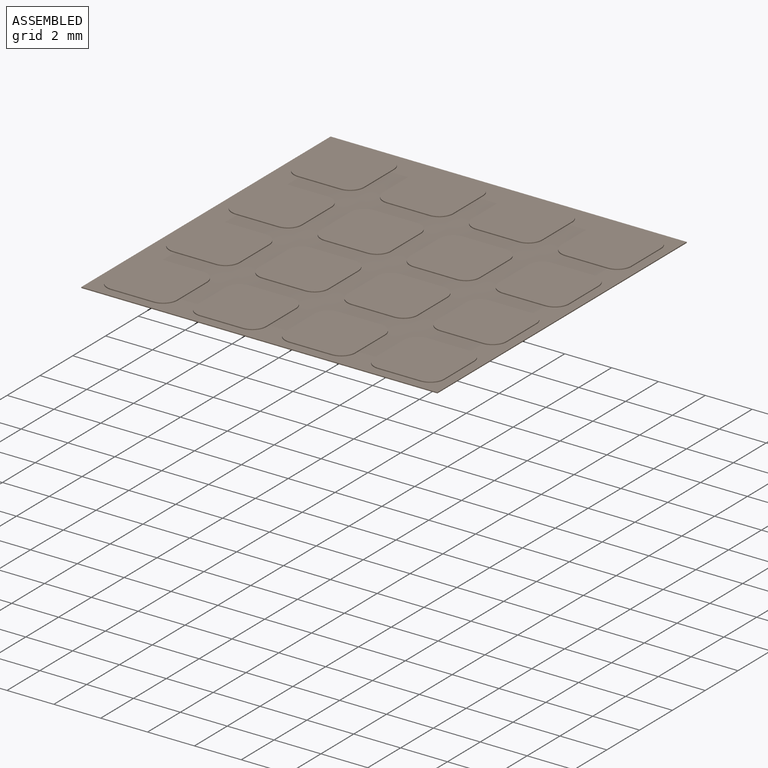
[diagram: assembled view]
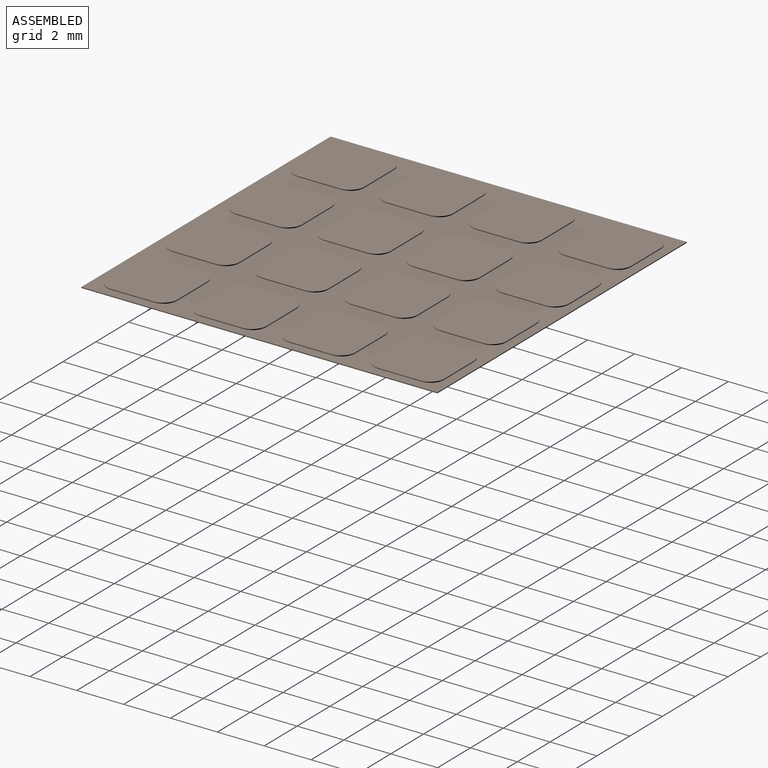
[diagram: assembled view, second angle]
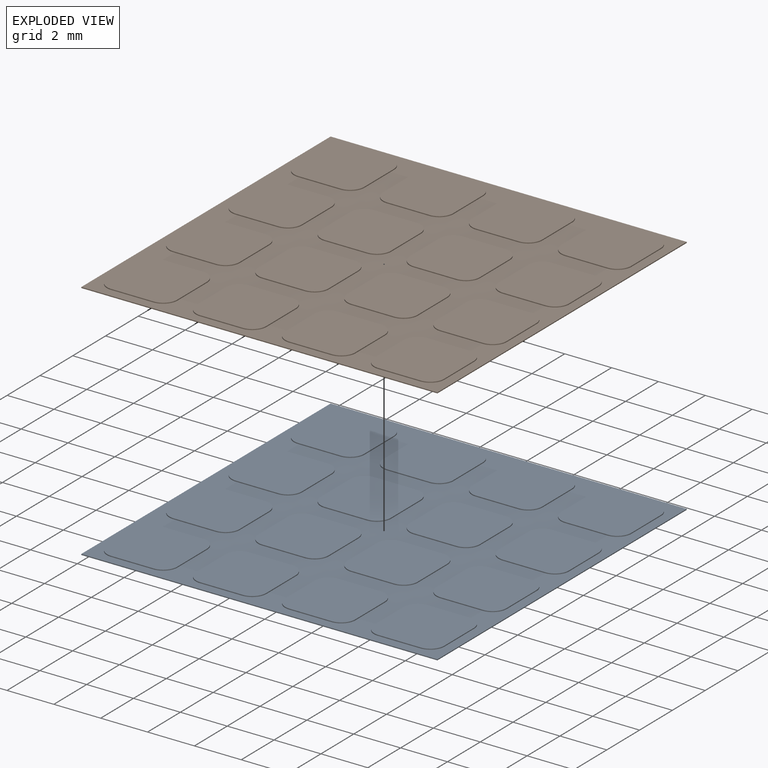
[diagram: exploded view]
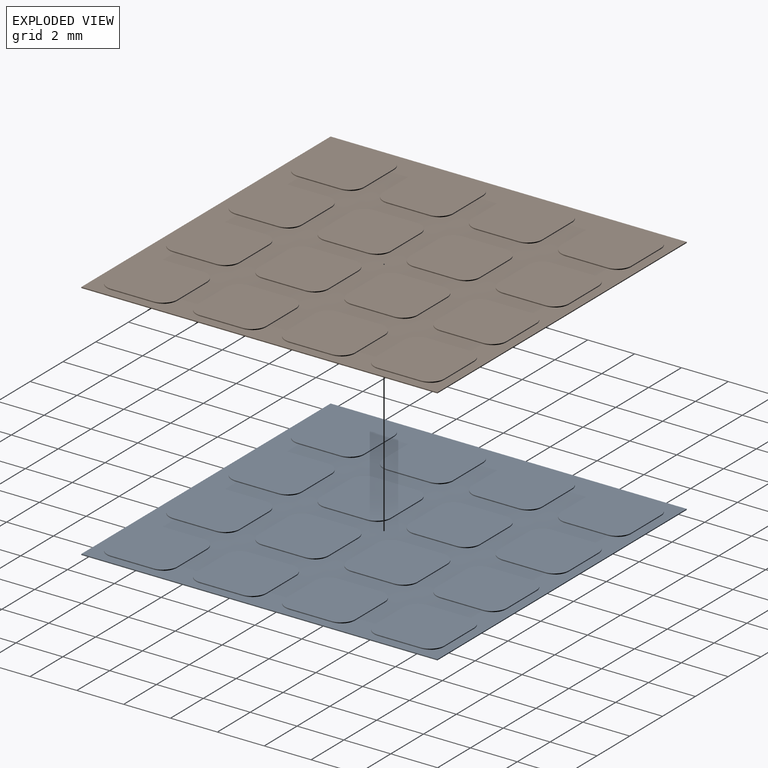
[diagram: exploded view, second angle]
FCSTD DOCUMENT  (FreeCAD 0.21R33771 (Git))
Label: pixelVolume_with_3_neighbors
License: All rights reserved
LicenseURL: https://en.wikipedia.org/wiki/All_rights_reserved
objects: Part::Cylinder×64, Part::Box×35, Part::MultiFuse×16, App::Link×2, Part::Cut×2, Spreadsheet::Sheet×1, Part::Compound×1
note: 118 computed .brp shape members not serialized (recipe doc carries the construction recipe); baked Part::Feature solids carry a one-line shape summary decoded from their .brp

FEATURE [Part::Box] Box009  label="pixel_body_horizontal"
  AttacherType = Attacher::AttachEngine3D
  Height = 0.04
  Length = 3
  Placement = pos=(-1.5,-0.9,0) rot=(0,0,1;0rad)
  Width = 1.8
  expr: .Placement.Base.x = -<<Parameters>>.pixel_width / 2
  expr: .Placement.Base.y = -<<Parameters>>.pixel_width / 2 + <<Parameters>>.pixel_corner_radius
  expr: Height = <<Parameters>>.pixel_thickness
  expr: Length = <<Parameters>>.pixel_width
  expr: Width = <<Parameters>>.pixel_width - 2 * <<Parameters>>.pixel_corner_radius
FEATURE [Part::Cylinder] Cylinder012  label="pixel_corner_bottom_right"
  Angle = 360
  AttacherType = Attacher::AttachEngine3D
  FirstAngle = 0
  Height = 0.04
  Placement = pos=(0.9,-0.9,0) rot=(0,0,1;0rad)
  Radius = 0.6
  SecondAngle = 0
  expr: .Placement.Base.x = <<Parameters>>.pixel_width / 2 - <<Parameters>>.pixel_corner_radius
  expr: .Placement.Base.y = -<<Parameters>>.pixel_width / 2 + <<Parameters>>.pixel_corner_radius
  expr: Height = <<Parameters>>.pixel_thickness
  expr: Radius = <<Parameters>>.pixel_corner_radius
FEATURE [Part::Cylinder] Cylinder013  label="pixel_corner_top_right"
  Angle = 360
  AttacherType = Attacher::AttachEngine3D
  FirstAngle = 0
  Height = 0.04
  Placement = pos=(0.9,0.9,0) rot=(0,0,1;0rad)
  Radius = 0.6
  SecondAngle = 0
  expr: .Placement.Base.x = <<Parameters>>.pixel_width / 2 - <<Parameters>>.pixel_corner_radius
  expr: .Placement.Base.y = <<Parameters>>.pixel_width / 2 - <<Parameters>>.pixel_corner_radius
  expr: Height = <<Parameters>>.pixel_thickness
  expr: Radius = <<Parameters>>.pixel_corner_radius
FEATURE [Part::Cylinder] Cylinder014  label="pixel_corner_bottom_left"
  Angle = 360
  AttacherType = Attacher::AttachEngine3D
  FirstAngle = 0
  Height = 0.04
  Placement = pos=(-0.9,-0.9,0) rot=(0,0,1;0rad)
  Radius = 0.6
  SecondAngle = 0
  expr: .Placement.Base.x = -<<Parameters>>.pixel_width / 2 + <<Parameters>>.pixel_corner_radius
  expr: .Placement.Base.y = -<<Parameters>>.pixel_width / 2 + <<Parameters>>.pixel_corner_radius
  expr: Height = <<Parameters>>.pixel_thickness
  expr: Radius = <<Parameters>>.pixel_corner_radius
FEATURE [Part::Box] Box002  label="back plane"
  AttacherType = Attacher::AttachEngine3D
  Height = 0.04
  Length = 15.2
  Placement = pos=(-1.9,-1.9,-0.04) rot=(0,0,1;0rad)
  Width = 15.2
  expr: .Placement.Base.x = -<<Parameters>>.pixel_pitch / 2
  expr: .Placement.Base.y = -<<Parameters>>.pixel_pitch / 2
  expr: .Placement.Base.z = -<<Parameters>>.pixel_thickness
  expr: Height = <<Parameters>>.pixel_thickness
  expr: Length = 4 * <<Parameters>>.pixel_pitch
  expr: Width = 4 * <<Parameters>>.pixel_pitch
FEATURE [Spreadsheet::Sheet] Spreadsheet  label="Parameters"
  cells = A1='Variable Name; B1='Value; A2='pixel_corner_radius; B2(pixel_corner_radius)==0.6 mm; A3='pixel_width; B3(pixel_width)==3 mm; A4='pixel_pitch; B4(pixel_pitch)==3.8 mm; A5='pixel_thickness; B5(pixel_thickness)==0.04 mm; A6='lar_depth; B6(lar_depth)==12 mm
FEATURE [Part::Cylinder] Cylinder016  label="pixel_corner_top_left"
  Angle = 360
  AttacherType = Attacher::AttachEngine3D
  FirstAngle = 0
  Height = 0.04
  Placement = pos=(-0.9,0.9,0) rot=(0,0,1;0rad)
  Radius = 0.6
  SecondAngle = 0
  expr: .Placement.Base.x = -<<Parameters>>.pixel_width / 2 + <<Parameters>>.pixel_corner_radius
  expr: .Placement.Base.y = <<Parameters>>.pixel_width / 2 - <<Parameters>>.pixel_corner_radius
  expr: Height = <<Parameters>>.pixel_thickness
  expr: Radius = <<Parameters>>.pixel_corner_radius
FEATURE [Part::Box] Box011  label="pixel_body_vertical"
  AttacherType = Attacher::AttachEngine3D
  Height = 0.04
  Length = 1.8
  Placement = pos=(-0.9,-1.5,0) rot=(0,0,1;0rad)
  Width = 3
  expr: .Placement.Base.x = -<<Parameters>>.pixel_width / 2 + <<Parameters>>.pixel_corner_radius
  expr: .Placement.Base.y = -<<Parameters>>.pixel_width / 2
  expr: Height = <<Parameters>>.pixel_thickness
  expr: Length = <<Parameters>>.pixel_width - 2 * <<Parameters>>.pixel_corner_radius
  expr: Width = <<Parameters>>.pixel_width
FEATURE [Part::MultiFuse] Fusion003  label="pixel pad 0, 0 (center)"
  Shapes = -> [Box009,Cylinder012,Cylinder013,Cylinder014,Cylinder016,Box011]
FEATURE [Part::Box] Box012  label="pixel_body_horizontal001"
  AttacherType = Attacher::AttachEngine3D
  Height = 0.04
  Length = 3
  Placement = pos=(-1.5,-0.9,0) rot=(0,0,1;0rad)
  Width = 1.8
  expr: .Placement.Base.x = -<<Parameters>>.pixel_width / 2
  expr: .Placement.Base.y = -<<Parameters>>.pixel_width / 2 + <<Parameters>>.pixel_corner_radius
  expr: Height = <<Parameters>>.pixel_thickness
  expr: Length = <<Parameters>>.pixel_width
  expr: Width = <<Parameters>>.pixel_width - 2 * <<Parameters>>.pixel_corner_radius
FEATURE [Part::Box] Box013  label="pixel_body_vertical001"
  AttacherType = Attacher::AttachEngine3D
  Height = 0.04
  Length = 1.8
  Placement = pos=(-0.9,-1.5,0) rot=(0,0,1;0rad)
  Width = 3
  expr: .Placement.Base.x = -<<Parameters>>.pixel_width / 2 + <<Parameters>>.pixel_corner_radius
  expr: .Placement.Base.y = -<<Parameters>>.pixel_width / 2
  expr: Height = <<Parameters>>.pixel_thickness
  expr: Length = <<Parameters>>.pixel_width - 2 * <<Parameters>>.pixel_corner_radius
  expr: Width = <<Parameters>>.pixel_width
FEATURE [Part::Cylinder] Cylinder017  label="pixel_corner_bottom_right001"
  Angle = 360
  AttacherType = Attacher::AttachEngine3D
  FirstAngle = 0
  Height = 0.04
  Placement = pos=(0.9,-0.9,0) rot=(0,0,1;0rad)
  Radius = 0.6
  SecondAngle = 0
  expr: .Placement.Base.x = <<Parameters>>.pixel_width / 2 - <<Parameters>>.pixel_corner_radius
  expr: .Placement.Base.y = -<<Parameters>>.pixel_width / 2 + <<Parameters>>.pixel_corner_radius
  expr: Height = <<Parameters>>.pixel_thickness
  expr: Radius = <<Parameters>>.pixel_corner_radius
FEATURE [Part::Cylinder] Cylinder018  label="pixel_corner_top_right001"
  Angle = 360
  AttacherType = Attacher::AttachEngine3D
  FirstAngle = 0
  Height = 0.04
  Placement = pos=(0.9,0.9,0) rot=(0,0,1;0rad)
  Radius = 0.6
  SecondAngle = 0
  expr: .Placement.Base.x = <<Parameters>>.pixel_width / 2 - <<Parameters>>.pixel_corner_radius
  expr: .Placement.Base.y = <<Parameters>>.pixel_width / 2 - <<Parameters>>.pixel_corner_radius
  expr: Height = <<Parameters>>.pixel_thickness
  expr: Radius = <<Parameters>>.pixel_corner_radius
FEATURE [Part::Cylinder] Cylinder019  label="pixel_corner_bottom_left001"
  Angle = 360
  AttacherType = Attacher::AttachEngine3D
  FirstAngle = 0
  Height = 0.04
  Placement = pos=(-0.9,-0.9,0) rot=(0,0,1;0rad)
  Radius = 0.6
  SecondAngle = 0
  expr: .Placement.Base.x = -<<Parameters>>.pixel_width / 2 + <<Parameters>>.pixel_corner_radius
  expr: .Placement.Base.y = -<<Parameters>>.pixel_width / 2 + <<Parameters>>.pixel_corner_radius
  expr: Height = <<Parameters>>.pixel_thickness
  expr: Radius = <<Parameters>>.pixel_corner_radius
FEATURE [Part::Cylinder] Cylinder020  label="pixel_corner_top_left001"
  Angle = 360
  AttacherType = Attacher::AttachEngine3D
  FirstAngle = 0
  Height = 0.04
  Placement = pos=(-0.9,0.9,0) rot=(0,0,1;0rad)
  Radius = 0.6
  SecondAngle = 0
  expr: .Placement.Base.x = -<<Parameters>>.pixel_width / 2 + <<Parameters>>.pixel_corner_radius
  expr: .Placement.Base.y = <<Parameters>>.pixel_width / 2 - <<Parameters>>.pixel_corner_radius
  expr: Height = <<Parameters>>.pixel_thickness
  expr: Radius = <<Parameters>>.pixel_corner_radius
FEATURE [Part::MultiFuse] Fusion004  label="pixel pad 0, 1"
  Placement = pos=(0,3.8,0) rot=(0,0,1;0rad)
  Shapes = -> [Box012,Cylinder017,Cylinder018,Cylinder019,Cylinder020,Box013]
  expr: .Placement.Base.y = <<Parameters>>.pixel_pitch
FEATURE [Part::Box] Box014  label="pixel_body_horizontal002"
  AttacherType = Attacher::AttachEngine3D
  Height = 0.04
  Length = 3
  Placement = pos=(-1.5,-0.9,0) rot=(0,0,1;0rad)
  Width = 1.8
  expr: .Placement.Base.x = -<<Parameters>>.pixel_width / 2
  expr: .Placement.Base.y = -<<Parameters>>.pixel_width / 2 + <<Parameters>>.pixel_corner_radius
  expr: Height = <<Parameters>>.pixel_thickness
  expr: Length = <<Parameters>>.pixel_width
  expr: Width = <<Parameters>>.pixel_width - 2 * <<Parameters>>.pixel_corner_radius
FEATURE [Part::Box] Box015  label="pixel_body_vertical002"
  AttacherType = Attacher::AttachEngine3D
  Height = 0.04
  Length = 1.8
  Placement = pos=(-0.9,-1.5,0) rot=(0,0,1;0rad)
  Width = 3
  expr: .Placement.Base.x = -<<Parameters>>.pixel_width / 2 + <<Parameters>>.pixel_corner_radius
  expr: .Placement.Base.y = -<<Parameters>>.pixel_width / 2
  expr: Height = <<Parameters>>.pixel_thickness
  expr: Length = <<Parameters>>.pixel_width - 2 * <<Parameters>>.pixel_corner_radius
  expr: Width = <<Parameters>>.pixel_width
FEATURE [Part::Cylinder] Cylinder021  label="pixel_corner_bottom_right002"
  Angle = 360
  AttacherType = Attacher::AttachEngine3D
  FirstAngle = 0
  Height = 0.04
  Placement = pos=(0.9,-0.9,0) rot=(0,0,1;0rad)
  Radius = 0.6
  SecondAngle = 0
  expr: .Placement.Base.x = <<Parameters>>.pixel_width / 2 - <<Parameters>>.pixel_corner_radius
  expr: .Placement.Base.y = -<<Parameters>>.pixel_width / 2 + <<Parameters>>.pixel_corner_radius
  expr: Height = <<Parameters>>.pixel_thickness
  expr: Radius = <<Parameters>>.pixel_corner_radius
FEATURE [Part::Cylinder] Cylinder022  label="pixel_corner_top_right002"
  Angle = 360
  AttacherType = Attacher::AttachEngine3D
  FirstAngle = 0
  Height = 0.04
  Placement = pos=(0.9,0.9,0) rot=(0,0,1;0rad)
  Radius = 0.6
  SecondAngle = 0
  expr: .Placement.Base.x = <<Parameters>>.pixel_width / 2 - <<Parameters>>.pixel_corner_radius
  expr: .Placement.Base.y = <<Parameters>>.pixel_width / 2 - <<Parameters>>.pixel_corner_radius
  expr: Height = <<Parameters>>.pixel_thickness
  expr: Radius = <<Parameters>>.pixel_corner_radius
FEATURE [Part::Cylinder] Cylinder023  label="pixel_corner_bottom_left002"
  Angle = 360
  AttacherType = Attacher::AttachEngine3D
  FirstAngle = 0
  Height = 0.04
  Placement = pos=(-0.9,-0.9,0) rot=(0,0,1;0rad)
  Radius = 0.6
  SecondAngle = 0
  expr: .Placement.Base.x = -<<Parameters>>.pixel_width / 2 + <<Parameters>>.pixel_corner_radius
  expr: .Placement.Base.y = -<<Parameters>>.pixel_width / 2 + <<Parameters>>.pixel_corner_radius
  expr: Height = <<Parameters>>.pixel_thickness
  expr: Radius = <<Parameters>>.pixel_corner_radius
FEATURE [Part::Cylinder] Cylinder024  label="pixel_corner_top_left002"
  Angle = 360
  AttacherType = Attacher::AttachEngine3D
  FirstAngle = 0
  Height = 0.04
  Placement = pos=(-0.9,0.9,0) rot=(0,0,1;0rad)
  Radius = 0.6
  SecondAngle = 0
  expr: .Placement.Base.x = -<<Parameters>>.pixel_width / 2 + <<Parameters>>.pixel_corner_radius
  expr: .Placement.Base.y = <<Parameters>>.pixel_width / 2 - <<Parameters>>.pixel_corner_radius
  expr: Height = <<Parameters>>.pixel_thickness
  expr: Radius = <<Parameters>>.pixel_corner_radius
FEATURE [Part::MultiFuse] Fusion005  label="pixel pad 1, 0"
  Placement = pos=(3.8,0,0) rot=(0,0,1;0rad)
  Shapes = -> [Box014,Cylinder021,Cylinder022,Cylinder023,Cylinder024,Box015]
  expr: .Placement.Base.x = <<Parameters>>.pixel_pitch
FEATURE [Part::Box] Box016  label="pixel_body_horizontal003"
  AttacherType = Attacher::AttachEngine3D
  Height = 0.04
  Length = 3
  Placement = pos=(-1.5,-0.9,0) rot=(0,0,1;0rad)
  Width = 1.8
  expr: .Placement.Base.x = -<<Parameters>>.pixel_width / 2
  expr: .Placement.Base.y = -<<Parameters>>.pixel_width / 2 + <<Parameters>>.pixel_corner_radius
  expr: Height = <<Parameters>>.pixel_thickness
  expr: Length = <<Parameters>>.pixel_width
  expr: Width = <<Parameters>>.pixel_width - 2 * <<Parameters>>.pixel_corner_radius
FEATURE [Part::Box] Box017  label="pixel_body_vertical003"
  AttacherType = Attacher::AttachEngine3D
  Height = 0.04
  Length = 1.8
  Placement = pos=(-0.9,-1.5,0) rot=(0,0,1;0rad)
  Width = 3
  expr: .Placement.Base.x = -<<Parameters>>.pixel_width / 2 + <<Parameters>>.pixel_corner_radius
  expr: .Placement.Base.y = -<<Parameters>>.pixel_width / 2
  expr: Height = <<Parameters>>.pixel_thickness
  expr: Length = <<Parameters>>.pixel_width - 2 * <<Parameters>>.pixel_corner_radius
  expr: Width = <<Parameters>>.pixel_width
FEATURE [Part::Cylinder] Cylinder025  label="pixel_corner_bottom_right003"
  Angle = 360
  AttacherType = Attacher::AttachEngine3D
  FirstAngle = 0
  Height = 0.04
  Placement = pos=(0.9,-0.9,0) rot=(0,0,1;0rad)
  Radius = 0.6
  SecondAngle = 0
  expr: .Placement.Base.x = <<Parameters>>.pixel_width / 2 - <<Parameters>>.pixel_corner_radius
  expr: .Placement.Base.y = -<<Parameters>>.pixel_width / 2 + <<Parameters>>.pixel_corner_radius
  expr: Height = <<Parameters>>.pixel_thickness
  expr: Radius = <<Parameters>>.pixel_corner_radius
FEATURE [Part::Cylinder] Cylinder026  label="pixel_corner_top_right003"
  Angle = 360
  AttacherType = Attacher::AttachEngine3D
  FirstAngle = 0
  Height = 0.04
  Placement = pos=(0.9,0.9,0) rot=(0,0,1;0rad)
  Radius = 0.6
  SecondAngle = 0
  expr: .Placement.Base.x = <<Parameters>>.pixel_width / 2 - <<Parameters>>.pixel_corner_radius
  expr: .Placement.Base.y = <<Parameters>>.pixel_width / 2 - <<Parameters>>.pixel_corner_radius
  expr: Height = <<Parameters>>.pixel_thickness
  expr: Radius = <<Parameters>>.pixel_corner_radius
FEATURE [Part::Cylinder] Cylinder027  label="pixel_corner_bottom_left003"
  Angle = 360
  AttacherType = Attacher::AttachEngine3D
  FirstAngle = 0
  Height = 0.04
  Placement = pos=(-0.9,-0.9,0) rot=(0,0,1;0rad)
  Radius = 0.6
  SecondAngle = 0
  expr: .Placement.Base.x = -<<Parameters>>.pixel_width / 2 + <<Parameters>>.pixel_corner_radius
  expr: .Placement.Base.y = -<<Parameters>>.pixel_width / 2 + <<Parameters>>.pixel_corner_radius
  expr: Height = <<Parameters>>.pixel_thickness
  expr: Radius = <<Parameters>>.pixel_corner_radius
FEATURE [Part::Cylinder] Cylinder028  label="pixel_corner_top_left003"
  Angle = 360
  AttacherType = Attacher::AttachEngine3D
  FirstAngle = 0
  Height = 0.04
  Placement = pos=(-0.9,0.9,0) rot=(0,0,1;0rad)
  Radius = 0.6
  SecondAngle = 0
  expr: .Placement.Base.x = -<<Parameters>>.pixel_width / 2 + <<Parameters>>.pixel_corner_radius
  expr: .Placement.Base.y = <<Parameters>>.pixel_width / 2 - <<Parameters>>.pixel_corner_radius
  expr: Height = <<Parameters>>.pixel_thickness
  expr: Radius = <<Parameters>>.pixel_corner_radius
FEATURE [Part::MultiFuse] Fusion006  label="pixel pad 2, 0"
  Placement = pos=(7.6,0,0) rot=(0,0,1;0rad)
  Shapes = -> [Box016,Cylinder025,Cylinder026,Cylinder027,Cylinder028,Box017]
  expr: .Placement.Base.x = 2 * <<Parameters>>.pixel_pitch
FEATURE [Part::Box] Box018  label="pixel_body_horizontal004"
  AttacherType = Attacher::AttachEngine3D
  Height = 0.04
  Length = 3
  Placement = pos=(-1.5,-0.9,0) rot=(0,0,1;0rad)
  Width = 1.8
  expr: .Placement.Base.x = -<<Parameters>>.pixel_width / 2
  expr: .Placement.Base.y = -<<Parameters>>.pixel_width / 2 + <<Parameters>>.pixel_corner_radius
  expr: Height = <<Parameters>>.pixel_thickness
  expr: Length = <<Parameters>>.pixel_width
  expr: Width = <<Parameters>>.pixel_width - 2 * <<Parameters>>.pixel_corner_radius
FEATURE [Part::Box] Box019  label="pixel_body_vertical004"
  AttacherType = Attacher::AttachEngine3D
  Height = 0.04
  Length = 1.8
  Placement = pos=(-0.9,-1.5,0) rot=(0,0,1;0rad)
  Width = 3
  expr: .Placement.Base.x = -<<Parameters>>.pixel_width / 2 + <<Parameters>>.pixel_corner_radius
  expr: .Placement.Base.y = -<<Parameters>>.pixel_width / 2
  expr: Height = <<Parameters>>.pixel_thickness
  expr: Length = <<Parameters>>.pixel_width - 2 * <<Parameters>>.pixel_corner_radius
  expr: Width = <<Parameters>>.pixel_width
FEATURE [Part::Cylinder] Cylinder029  label="pixel_corner_bottom_right004"
  Angle = 360
  AttacherType = Attacher::AttachEngine3D
  FirstAngle = 0
  Height = 0.04
  Placement = pos=(0.9,-0.9,0) rot=(0,0,1;0rad)
  Radius = 0.6
  SecondAngle = 0
  expr: .Placement.Base.x = <<Parameters>>.pixel_width / 2 - <<Parameters>>.pixel_corner_radius
  expr: .Placement.Base.y = -<<Parameters>>.pixel_width / 2 + <<Parameters>>.pixel_corner_radius
  expr: Height = <<Parameters>>.pixel_thickness
  expr: Radius = <<Parameters>>.pixel_corner_radius
FEATURE [Part::Cylinder] Cylinder030  label="pixel_corner_top_right004"
  Angle = 360
  AttacherType = Attacher::AttachEngine3D
  FirstAngle = 0
  Height = 0.04
  Placement = pos=(0.9,0.9,0) rot=(0,0,1;0rad)
  Radius = 0.6
  SecondAngle = 0
  expr: .Placement.Base.x = <<Parameters>>.pixel_width / 2 - <<Parameters>>.pixel_corner_radius
  expr: .Placement.Base.y = <<Parameters>>.pixel_width / 2 - <<Parameters>>.pixel_corner_radius
  expr: Height = <<Parameters>>.pixel_thickness
  expr: Radius = <<Parameters>>.pixel_corner_radius
FEATURE [Part::Cylinder] Cylinder031  label="pixel_corner_bottom_left004"
  Angle = 360
  AttacherType = Attacher::AttachEngine3D
  FirstAngle = 0
  Height = 0.04
  Placement = pos=(-0.9,-0.9,0) rot=(0,0,1;0rad)
  Radius = 0.6
  SecondAngle = 0
  expr: .Placement.Base.x = -<<Parameters>>.pixel_width / 2 + <<Parameters>>.pixel_corner_radius
  expr: .Placement.Base.y = -<<Parameters>>.pixel_width / 2 + <<Parameters>>.pixel_corner_radius
  expr: Height = <<Parameters>>.pixel_thickness
  expr: Radius = <<Parameters>>.pixel_corner_radius
FEATURE [Part::Cylinder] Cylinder032  label="pixel_corner_top_left004"
  Angle = 360
  AttacherType = Attacher::AttachEngine3D
  FirstAngle = 0
  Height = 0.04
  Placement = pos=(-0.9,0.9,0) rot=(0,0,1;0rad)
  Radius = 0.6
  SecondAngle = 0
  expr: .Placement.Base.x = -<<Parameters>>.pixel_width / 2 + <<Parameters>>.pixel_corner_radius
  expr: .Placement.Base.y = <<Parameters>>.pixel_width / 2 - <<Parameters>>.pixel_corner_radius
  expr: Height = <<Parameters>>.pixel_thickness
  expr: Radius = <<Parameters>>.pixel_corner_radius
FEATURE [Part::MultiFuse] Fusion007  label="pixel pad 3, 0"
  Placement = pos=(11.4,0,0) rot=(0,0,1;0rad)
  Shapes = -> [Box018,Cylinder029,Cylinder030,Cylinder031,Cylinder032,Box019]
  expr: .Placement.Base.x = 3 * <<Parameters>>.pixel_pitch
FEATURE [Part::Box] Box020  label="pixel_body_horizontal005"
  AttacherType = Attacher::AttachEngine3D
  Height = 0.04
  Length = 3
  Placement = pos=(-1.5,-0.9,0) rot=(0,0,1;0rad)
  Width = 1.8
  expr: .Placement.Base.x = -<<Parameters>>.pixel_width / 2
  expr: .Placement.Base.y = -<<Parameters>>.pixel_width / 2 + <<Parameters>>.pixel_corner_radius
  expr: Height = <<Parameters>>.pixel_thickness
  expr: Length = <<Parameters>>.pixel_width
  expr: Width = <<Parameters>>.pixel_width - 2 * <<Parameters>>.pixel_corner_radius
FEATURE [Part::Box] Box021  label="pixel_body_vertical005"
  AttacherType = Attacher::AttachEngine3D
  Height = 0.04
  Length = 1.8
  Placement = pos=(-0.9,-1.5,0) rot=(0,0,1;0rad)
  Width = 3
  expr: .Placement.Base.x = -<<Parameters>>.pixel_width / 2 + <<Parameters>>.pixel_corner_radius
  expr: .Placement.Base.y = -<<Parameters>>.pixel_width / 2
  expr: Height = <<Parameters>>.pixel_thickness
  expr: Length = <<Parameters>>.pixel_width - 2 * <<Parameters>>.pixel_corner_radius
  expr: Width = <<Parameters>>.pixel_width
FEATURE [Part::Cylinder] Cylinder033  label="pixel_corner_bottom_right005"
  Angle = 360
  AttacherType = Attacher::AttachEngine3D
  FirstAngle = 0
  Height = 0.04
  Placement = pos=(0.9,-0.9,0) rot=(0,0,1;0rad)
  Radius = 0.6
  SecondAngle = 0
  expr: .Placement.Base.x = <<Parameters>>.pixel_width / 2 - <<Parameters>>.pixel_corner_radius
  expr: .Placement.Base.y = -<<Parameters>>.pixel_width / 2 + <<Parameters>>.pixel_corner_radius
  expr: Height = <<Parameters>>.pixel_thickness
  expr: Radius = <<Parameters>>.pixel_corner_radius
FEATURE [Part::Cylinder] Cylinder034  label="pixel_corner_top_right005"
  Angle = 360
  AttacherType = Attacher::AttachEngine3D
  FirstAngle = 0
  Height = 0.04
  Placement = pos=(0.9,0.9,0) rot=(0,0,1;0rad)
  Radius = 0.6
  SecondAngle = 0
  expr: .Placement.Base.x = <<Parameters>>.pixel_width / 2 - <<Parameters>>.pixel_corner_radius
  expr: .Placement.Base.y = <<Parameters>>.pixel_width / 2 - <<Parameters>>.pixel_corner_radius
  expr: Height = <<Parameters>>.pixel_thickness
  expr: Radius = <<Parameters>>.pixel_corner_radius
FEATURE [Part::Cylinder] Cylinder035  label="pixel_corner_bottom_left005"
  Angle = 360
  AttacherType = Attacher::AttachEngine3D
  FirstAngle = 0
  Height = 0.04
  Placement = pos=(-0.9,-0.9,0) rot=(0,0,1;0rad)
  Radius = 0.6
  SecondAngle = 0
  expr: .Placement.Base.x = -<<Parameters>>.pixel_width / 2 + <<Parameters>>.pixel_corner_radius
  expr: .Placement.Base.y = -<<Parameters>>.pixel_width / 2 + <<Parameters>>.pixel_corner_radius
  expr: Height = <<Parameters>>.pixel_thickness
  expr: Radius = <<Parameters>>.pixel_corner_radius
FEATURE [Part::Cylinder] Cylinder036  label="pixel_corner_top_left005"
  Angle = 360
  AttacherType = Attacher::AttachEngine3D
  FirstAngle = 0
  Height = 0.04
  Placement = pos=(-0.9,0.9,0) rot=(0,0,1;0rad)
  Radius = 0.6
  SecondAngle = 0
  expr: .Placement.Base.x = -<<Parameters>>.pixel_width / 2 + <<Parameters>>.pixel_corner_radius
  expr: .Placement.Base.y = <<Parameters>>.pixel_width / 2 - <<Parameters>>.pixel_corner_radius
  expr: Height = <<Parameters>>.pixel_thickness
  expr: Radius = <<Parameters>>.pixel_corner_radius
FEATURE [Part::MultiFuse] Fusion008  label="pixel pad 0, 2"
  Placement = pos=(0,7.6,0) rot=(0,0,1;0rad)
  Shapes = -> [Box020,Cylinder033,Cylinder034,Cylinder035,Cylinder036,Box021]
  expr: .Placement.Base.y = 2 * <<Parameters>>.pixel_pitch
FEATURE [Part::Box] Box022  label="pixel_body_horizontal006"
  AttacherType = Attacher::AttachEngine3D
  Height = 0.04
  Length = 3
  Placement = pos=(-1.5,-0.9,0) rot=(0,0,1;0rad)
  Width = 1.8
  expr: .Placement.Base.x = -<<Parameters>>.pixel_width / 2
  expr: .Placement.Base.y = -<<Parameters>>.pixel_width / 2 + <<Parameters>>.pixel_corner_radius
  expr: Height = <<Parameters>>.pixel_thickness
  expr: Length = <<Parameters>>.pixel_width
  expr: Width = <<Parameters>>.pixel_width - 2 * <<Parameters>>.pixel_corner_radius
FEATURE [Part::Box] Box023  label="pixel_body_vertical006"
  AttacherType = Attacher::AttachEngine3D
  Height = 0.04
  Length = 1.8
  Placement = pos=(-0.9,-1.5,0) rot=(0,0,1;0rad)
  Width = 3
  expr: .Placement.Base.x = -<<Parameters>>.pixel_width / 2 + <<Parameters>>.pixel_corner_radius
  expr: .Placement.Base.y = -<<Parameters>>.pixel_width / 2
  expr: Height = <<Parameters>>.pixel_thickness
  expr: Length = <<Parameters>>.pixel_width - 2 * <<Parameters>>.pixel_corner_radius
  expr: Width = <<Parameters>>.pixel_width
FEATURE [Part::Cylinder] Cylinder037  label="pixel_corner_bottom_right006"
  Angle = 360
  AttacherType = Attacher::AttachEngine3D
  FirstAngle = 0
  Height = 0.04
  Placement = pos=(0.9,-0.9,0) rot=(0,0,1;0rad)
  Radius = 0.6
  SecondAngle = 0
  expr: .Placement.Base.x = <<Parameters>>.pixel_width / 2 - <<Parameters>>.pixel_corner_radius
  expr: .Placement.Base.y = -<<Parameters>>.pixel_width / 2 + <<Parameters>>.pixel_corner_radius
  expr: Height = <<Parameters>>.pixel_thickness
  expr: Radius = <<Parameters>>.pixel_corner_radius
FEATURE [Part::Cylinder] Cylinder038  label="pixel_corner_top_right006"
  Angle = 360
  AttacherType = Attacher::AttachEngine3D
  FirstAngle = 0
  Height = 0.04
  Placement = pos=(0.9,0.9,0) rot=(0,0,1;0rad)
  Radius = 0.6
  SecondAngle = 0
  expr: .Placement.Base.x = <<Parameters>>.pixel_width / 2 - <<Parameters>>.pixel_corner_radius
  expr: .Placement.Base.y = <<Parameters>>.pixel_width / 2 - <<Parameters>>.pixel_corner_radius
  expr: Height = <<Parameters>>.pixel_thickness
  expr: Radius = <<Parameters>>.pixel_corner_radius
FEATURE [Part::Cylinder] Cylinder039  label="pixel_corner_bottom_left006"
  Angle = 360
  AttacherType = Attacher::AttachEngine3D
  FirstAngle = 0
  Height = 0.04
  Placement = pos=(-0.9,-0.9,0) rot=(0,0,1;0rad)
  Radius = 0.6
  SecondAngle = 0
  expr: .Placement.Base.x = -<<Parameters>>.pixel_width / 2 + <<Parameters>>.pixel_corner_radius
  expr: .Placement.Base.y = -<<Parameters>>.pixel_width / 2 + <<Parameters>>.pixel_corner_radius
  expr: Height = <<Parameters>>.pixel_thickness
  expr: Radius = <<Parameters>>.pixel_corner_radius
FEATURE [Part::Cylinder] Cylinder040  label="pixel_corner_top_left006"
  Angle = 360
  AttacherType = Attacher::AttachEngine3D
  FirstAngle = 0
  Height = 0.04
  Placement = pos=(-0.9,0.9,0) rot=(0,0,1;0rad)
  Radius = 0.6
  SecondAngle = 0
  expr: .Placement.Base.x = -<<Parameters>>.pixel_width / 2 + <<Parameters>>.pixel_corner_radius
  expr: .Placement.Base.y = <<Parameters>>.pixel_width / 2 - <<Parameters>>.pixel_corner_radius
  expr: Height = <<Parameters>>.pixel_thickness
  expr: Radius = <<Parameters>>.pixel_corner_radius
FEATURE [Part::MultiFuse] Fusion009  label="pixel pad 0, 3"
  Placement = pos=(0,11.4,0) rot=(0,0,1;0rad)
  Shapes = -> [Box022,Cylinder037,Cylinder038,Cylinder039,Cylinder040,Box023]
  expr: .Placement.Base.y = 3 * <<Parameters>>.pixel_pitch
FEATURE [Part::Box] Box024  label="pixel_body_horizontal007"
  AttacherType = Attacher::AttachEngine3D
  Height = 0.04
  Length = 3
  Placement = pos=(-1.5,-0.9,0) rot=(0,0,1;0rad)
  Width = 1.8
  expr: .Placement.Base.x = -<<Parameters>>.pixel_width / 2
  expr: .Placement.Base.y = -<<Parameters>>.pixel_width / 2 + <<Parameters>>.pixel_corner_radius
  expr: Height = <<Parameters>>.pixel_thickness
  expr: Length = <<Parameters>>.pixel_width
  expr: Width = <<Parameters>>.pixel_width - 2 * <<Parameters>>.pixel_corner_radius
FEATURE [Part::Box] Box025  label="pixel_body_vertical007"
  AttacherType = Attacher::AttachEngine3D
  Height = 0.04
  Length = 1.8
  Placement = pos=(-0.9,-1.5,0) rot=(0,0,1;0rad)
  Width = 3
  expr: .Placement.Base.x = -<<Parameters>>.pixel_width / 2 + <<Parameters>>.pixel_corner_radius
  expr: .Placement.Base.y = -<<Parameters>>.pixel_width / 2
  expr: Height = <<Parameters>>.pixel_thickness
  expr: Length = <<Parameters>>.pixel_width - 2 * <<Parameters>>.pixel_corner_radius
  expr: Width = <<Parameters>>.pixel_width
FEATURE [Part::Cylinder] Cylinder041  label="pixel_corner_bottom_right007"
  Angle = 360
  AttacherType = Attacher::AttachEngine3D
  FirstAngle = 0
  Height = 0.04
  Placement = pos=(0.9,-0.9,0) rot=(0,0,1;0rad)
  Radius = 0.6
  SecondAngle = 0
  expr: .Placement.Base.x = <<Parameters>>.pixel_width / 2 - <<Parameters>>.pixel_corner_radius
  expr: .Placement.Base.y = -<<Parameters>>.pixel_width / 2 + <<Parameters>>.pixel_corner_radius
  expr: Height = <<Parameters>>.pixel_thickness
  expr: Radius = <<Parameters>>.pixel_corner_radius
FEATURE [Part::Cylinder] Cylinder042  label="pixel_corner_top_right007"
  Angle = 360
  AttacherType = Attacher::AttachEngine3D
  FirstAngle = 0
  Height = 0.04
  Placement = pos=(0.9,0.9,0) rot=(0,0,1;0rad)
  Radius = 0.6
  SecondAngle = 0
  expr: .Placement.Base.x = <<Parameters>>.pixel_width / 2 - <<Parameters>>.pixel_corner_radius
  expr: .Placement.Base.y = <<Parameters>>.pixel_width / 2 - <<Parameters>>.pixel_corner_radius
  expr: Height = <<Parameters>>.pixel_thickness
  expr: Radius = <<Parameters>>.pixel_corner_radius
FEATURE [Part::Cylinder] Cylinder043  label="pixel_corner_bottom_left007"
  Angle = 360
  AttacherType = Attacher::AttachEngine3D
  FirstAngle = 0
  Height = 0.04
  Placement = pos=(-0.9,-0.9,0) rot=(0,0,1;0rad)
  Radius = 0.6
  SecondAngle = 0
  expr: .Placement.Base.x = -<<Parameters>>.pixel_width / 2 + <<Parameters>>.pixel_corner_radius
  expr: .Placement.Base.y = -<<Parameters>>.pixel_width / 2 + <<Parameters>>.pixel_corner_radius
  expr: Height = <<Parameters>>.pixel_thickness
  expr: Radius = <<Parameters>>.pixel_corner_radius
FEATURE [Part::Cylinder] Cylinder044  label="pixel_corner_top_left007"
  Angle = 360
  AttacherType = Attacher::AttachEngine3D
  FirstAngle = 0
  Height = 0.04
  Placement = pos=(-0.9,0.9,0) rot=(0,0,1;0rad)
  Radius = 0.6
  SecondAngle = 0
  expr: .Placement.Base.x = -<<Parameters>>.pixel_width / 2 + <<Parameters>>.pixel_corner_radius
  expr: .Placement.Base.y = <<Parameters>>.pixel_width / 2 - <<Parameters>>.pixel_corner_radius
  expr: Height = <<Parameters>>.pixel_thickness
  expr: Radius = <<Parameters>>.pixel_corner_radius
FEATURE [Part::MultiFuse] Fusion010  label="pixel pad 1, 1"
  Placement = pos=(3.8,3.8,0) rot=(0,0,1;0rad)
  Shapes = -> [Box024,Cylinder041,Cylinder042,Cylinder043,Cylinder044,Box025]
  expr: .Placement.Base.x = <<Parameters>>.pixel_pitch
  expr: .Placement.Base.y = <<Parameters>>.pixel_pitch
FEATURE [Part::Box] Box026  label="pixel_body_horizontal008"
  AttacherType = Attacher::AttachEngine3D
  Height = 0.04
  Length = 3
  Placement = pos=(-1.5,-0.9,0) rot=(0,0,1;0rad)
  Width = 1.8
  expr: .Placement.Base.x = -<<Parameters>>.pixel_width / 2
  expr: .Placement.Base.y = -<<Parameters>>.pixel_width / 2 + <<Parameters>>.pixel_corner_radius
  expr: Height = <<Parameters>>.pixel_thickness
  expr: Length = <<Parameters>>.pixel_width
  expr: Width = <<Parameters>>.pixel_width - 2 * <<Parameters>>.pixel_corner_radius
FEATURE [Part::Box] Box027  label="pixel_body_vertical008"
  AttacherType = Attacher::AttachEngine3D
  Height = 0.04
  Length = 1.8
  Placement = pos=(-0.9,-1.5,0) rot=(0,0,1;0rad)
  Width = 3
  expr: .Placement.Base.x = -<<Parameters>>.pixel_width / 2 + <<Parameters>>.pixel_corner_radius
  expr: .Placement.Base.y = -<<Parameters>>.pixel_width / 2
  expr: Height = <<Parameters>>.pixel_thickness
  expr: Length = <<Parameters>>.pixel_width - 2 * <<Parameters>>.pixel_corner_radius
  expr: Width = <<Parameters>>.pixel_width
FEATURE [Part::Cylinder] Cylinder045  label="pixel_corner_bottom_right008"
  Angle = 360
  AttacherType = Attacher::AttachEngine3D
  FirstAngle = 0
  Height = 0.04
  Placement = pos=(0.9,-0.9,0) rot=(0,0,1;0rad)
  Radius = 0.6
  SecondAngle = 0
  expr: .Placement.Base.x = <<Parameters>>.pixel_width / 2 - <<Parameters>>.pixel_corner_radius
  expr: .Placement.Base.y = -<<Parameters>>.pixel_width / 2 + <<Parameters>>.pixel_corner_radius
  expr: Height = <<Parameters>>.pixel_thickness
  expr: Radius = <<Parameters>>.pixel_corner_radius
FEATURE [Part::Cylinder] Cylinder046  label="pixel_corner_top_right008"
  Angle = 360
  AttacherType = Attacher::AttachEngine3D
  FirstAngle = 0
  Height = 0.04
  Placement = pos=(0.9,0.9,0) rot=(0,0,1;0rad)
  Radius = 0.6
  SecondAngle = 0
  expr: .Placement.Base.x = <<Parameters>>.pixel_width / 2 - <<Parameters>>.pixel_corner_radius
  expr: .Placement.Base.y = <<Parameters>>.pixel_width / 2 - <<Parameters>>.pixel_corner_radius
  expr: Height = <<Parameters>>.pixel_thickness
  expr: Radius = <<Parameters>>.pixel_corner_radius
FEATURE [Part::Cylinder] Cylinder047  label="pixel_corner_bottom_left008"
  Angle = 360
  AttacherType = Attacher::AttachEngine3D
  FirstAngle = 0
  Height = 0.04
  Placement = pos=(-0.9,-0.9,0) rot=(0,0,1;0rad)
  Radius = 0.6
  SecondAngle = 0
  expr: .Placement.Base.x = -<<Parameters>>.pixel_width / 2 + <<Parameters>>.pixel_corner_radius
  expr: .Placement.Base.y = -<<Parameters>>.pixel_width / 2 + <<Parameters>>.pixel_corner_radius
  expr: Height = <<Parameters>>.pixel_thickness
  expr: Radius = <<Parameters>>.pixel_corner_radius
FEATURE [Part::Cylinder] Cylinder048  label="pixel_corner_top_left008"
  Angle = 360
  AttacherType = Attacher::AttachEngine3D
  FirstAngle = 0
  Height = 0.04
  Placement = pos=(-0.9,0.9,0) rot=(0,0,1;0rad)
  Radius = 0.6
  SecondAngle = 0
  expr: .Placement.Base.x = -<<Parameters>>.pixel_width / 2 + <<Parameters>>.pixel_corner_radius
  expr: .Placement.Base.y = <<Parameters>>.pixel_width / 2 - <<Parameters>>.pixel_corner_radius
  expr: Height = <<Parameters>>.pixel_thickness
  expr: Radius = <<Parameters>>.pixel_corner_radius
FEATURE [Part::MultiFuse] Fusion011  label="pixel pad 1, 2"
  Placement = pos=(3.8,7.6,0) rot=(0,0,1;0rad)
  Shapes = -> [Box026,Cylinder045,Cylinder046,Cylinder047,Cylinder048,Box027]
  expr: .Placement.Base.x = <<Parameters>>.pixel_pitch
  expr: .Placement.Base.y = 2 * <<Parameters>>.pixel_pitch
FEATURE [Part::Box] Box028  label="pixel_body_horizontal009"
  AttacherType = Attacher::AttachEngine3D
  Height = 0.04
  Length = 3
  Placement = pos=(-1.5,-0.9,0) rot=(0,0,1;0rad)
  Width = 1.8
  expr: .Placement.Base.x = -<<Parameters>>.pixel_width / 2
  expr: .Placement.Base.y = -<<Parameters>>.pixel_width / 2 + <<Parameters>>.pixel_corner_radius
  expr: Height = <<Parameters>>.pixel_thickness
  expr: Length = <<Parameters>>.pixel_width
  expr: Width = <<Parameters>>.pixel_width - 2 * <<Parameters>>.pixel_corner_radius
FEATURE [Part::Box] Box029  label="pixel_body_vertical009"
  AttacherType = Attacher::AttachEngine3D
  Height = 0.04
  Length = 1.8
  Placement = pos=(-0.9,-1.5,0) rot=(0,0,1;0rad)
  Width = 3
  expr: .Placement.Base.x = -<<Parameters>>.pixel_width / 2 + <<Parameters>>.pixel_corner_radius
  expr: .Placement.Base.y = -<<Parameters>>.pixel_width / 2
  expr: Height = <<Parameters>>.pixel_thickness
  expr: Length = <<Parameters>>.pixel_width - 2 * <<Parameters>>.pixel_corner_radius
  expr: Width = <<Parameters>>.pixel_width
FEATURE [Part::Cylinder] Cylinder049  label="pixel_corner_bottom_right009"
  Angle = 360
  AttacherType = Attacher::AttachEngine3D
  FirstAngle = 0
  Height = 0.04
  Placement = pos=(0.9,-0.9,0) rot=(0,0,1;0rad)
  Radius = 0.6
  SecondAngle = 0
  expr: .Placement.Base.x = <<Parameters>>.pixel_width / 2 - <<Parameters>>.pixel_corner_radius
  expr: .Placement.Base.y = -<<Parameters>>.pixel_width / 2 + <<Parameters>>.pixel_corner_radius
  expr: Height = <<Parameters>>.pixel_thickness
  expr: Radius = <<Parameters>>.pixel_corner_radius
FEATURE [Part::Cylinder] Cylinder050  label="pixel_corner_top_right009"
  Angle = 360
  AttacherType = Attacher::AttachEngine3D
  FirstAngle = 0
  Height = 0.04
  Placement = pos=(0.9,0.9,0) rot=(0,0,1;0rad)
  Radius = 0.6
  SecondAngle = 0
  expr: .Placement.Base.x = <<Parameters>>.pixel_width / 2 - <<Parameters>>.pixel_corner_radius
  expr: .Placement.Base.y = <<Parameters>>.pixel_width / 2 - <<Parameters>>.pixel_corner_radius
  expr: Height = <<Parameters>>.pixel_thickness
  expr: Radius = <<Parameters>>.pixel_corner_radius
FEATURE [Part::Cylinder] Cylinder051  label="pixel_corner_bottom_left009"
  Angle = 360
  AttacherType = Attacher::AttachEngine3D
  FirstAngle = 0
  Height = 0.04
  Placement = pos=(-0.9,-0.9,0) rot=(0,0,1;0rad)
  Radius = 0.6
  SecondAngle = 0
  expr: .Placement.Base.x = -<<Parameters>>.pixel_width / 2 + <<Parameters>>.pixel_corner_radius
  expr: .Placement.Base.y = -<<Parameters>>.pixel_width / 2 + <<Parameters>>.pixel_corner_radius
  expr: Height = <<Parameters>>.pixel_thickness
  expr: Radius = <<Parameters>>.pixel_corner_radius
FEATURE [Part::Cylinder] Cylinder052  label="pixel_corner_top_left009"
  Angle = 360
  AttacherType = Attacher::AttachEngine3D
  FirstAngle = 0
  Height = 0.04
  Placement = pos=(-0.9,0.9,0) rot=(0,0,1;0rad)
  Radius = 0.6
  SecondAngle = 0
  expr: .Placement.Base.x = -<<Parameters>>.pixel_width / 2 + <<Parameters>>.pixel_corner_radius
  expr: .Placement.Base.y = <<Parameters>>.pixel_width / 2 - <<Parameters>>.pixel_corner_radius
  expr: Height = <<Parameters>>.pixel_thickness
  expr: Radius = <<Parameters>>.pixel_corner_radius
FEATURE [Part::MultiFuse] Fusion012  label="pixel pad 1, 3"
  Placement = pos=(3.8,11.4,0) rot=(0,0,1;0rad)
  Shapes = -> [Box028,Cylinder049,Cylinder050,Cylinder051,Cylinder052,Box029]
  expr: .Placement.Base.x = <<Parameters>>.pixel_pitch
  expr: .Placement.Base.y = 3 * <<Parameters>>.pixel_pitch
FEATURE [Part::Box] Box030  label="pixel_body_horizontal010"
  AttacherType = Attacher::AttachEngine3D
  Height = 0.04
  Length = 3
  Placement = pos=(-1.5,-0.9,0) rot=(0,0,1;0rad)
  Width = 1.8
  expr: .Placement.Base.x = -<<Parameters>>.pixel_width / 2
  expr: .Placement.Base.y = -<<Parameters>>.pixel_width / 2 + <<Parameters>>.pixel_corner_radius
  expr: Height = <<Parameters>>.pixel_thickness
  expr: Length = <<Parameters>>.pixel_width
  expr: Width = <<Parameters>>.pixel_width - 2 * <<Parameters>>.pixel_corner_radius
FEATURE [Part::Box] Box031  label="pixel_body_vertical010"
  AttacherType = Attacher::AttachEngine3D
  Height = 0.04
  Length = 1.8
  Placement = pos=(-0.9,-1.5,0) rot=(0,0,1;0rad)
  Width = 3
  expr: .Placement.Base.x = -<<Parameters>>.pixel_width / 2 + <<Parameters>>.pixel_corner_radius
  expr: .Placement.Base.y = -<<Parameters>>.pixel_width / 2
  expr: Height = <<Parameters>>.pixel_thickness
  expr: Length = <<Parameters>>.pixel_width - 2 * <<Parameters>>.pixel_corner_radius
  expr: Width = <<Parameters>>.pixel_width
FEATURE [Part::Cylinder] Cylinder053  label="pixel_corner_bottom_right010"
  Angle = 360
  AttacherType = Attacher::AttachEngine3D
  FirstAngle = 0
  Height = 0.04
  Placement = pos=(0.9,-0.9,0) rot=(0,0,1;0rad)
  Radius = 0.6
  SecondAngle = 0
  expr: .Placement.Base.x = <<Parameters>>.pixel_width / 2 - <<Parameters>>.pixel_corner_radius
  expr: .Placement.Base.y = -<<Parameters>>.pixel_width / 2 + <<Parameters>>.pixel_corner_radius
  expr: Height = <<Parameters>>.pixel_thickness
  expr: Radius = <<Parameters>>.pixel_corner_radius
FEATURE [Part::Cylinder] Cylinder054  label="pixel_corner_top_right010"
  Angle = 360
  AttacherType = Attacher::AttachEngine3D
  FirstAngle = 0
  Height = 0.04
  Placement = pos=(0.9,0.9,0) rot=(0,0,1;0rad)
  Radius = 0.6
  SecondAngle = 0
  expr: .Placement.Base.x = <<Parameters>>.pixel_width / 2 - <<Parameters>>.pixel_corner_radius
  expr: .Placement.Base.y = <<Parameters>>.pixel_width / 2 - <<Parameters>>.pixel_corner_radius
  expr: Height = <<Parameters>>.pixel_thickness
  expr: Radius = <<Parameters>>.pixel_corner_radius
FEATURE [Part::Cylinder] Cylinder055  label="pixel_corner_bottom_left010"
  Angle = 360
  AttacherType = Attacher::AttachEngine3D
  FirstAngle = 0
  Height = 0.04
  Placement = pos=(-0.9,-0.9,0) rot=(0,0,1;0rad)
  Radius = 0.6
  SecondAngle = 0
  expr: .Placement.Base.x = -<<Parameters>>.pixel_width / 2 + <<Parameters>>.pixel_corner_radius
  expr: .Placement.Base.y = -<<Parameters>>.pixel_width / 2 + <<Parameters>>.pixel_corner_radius
  expr: Height = <<Parameters>>.pixel_thickness
  expr: Radius = <<Parameters>>.pixel_corner_radius
FEATURE [Part::Cylinder] Cylinder056  label="pixel_corner_top_left010"
  Angle = 360
  AttacherType = Attacher::AttachEngine3D
  FirstAngle = 0
  Height = 0.04
  Placement = pos=(-0.9,0.9,0) rot=(0,0,1;0rad)
  Radius = 0.6
  SecondAngle = 0
  expr: .Placement.Base.x = -<<Parameters>>.pixel_width / 2 + <<Parameters>>.pixel_corner_radius
  expr: .Placement.Base.y = <<Parameters>>.pixel_width / 2 - <<Parameters>>.pixel_corner_radius
  expr: Height = <<Parameters>>.pixel_thickness
  expr: Radius = <<Parameters>>.pixel_corner_radius
FEATURE [Part::MultiFuse] Fusion013  label="pixel pad 2, 1"
  Placement = pos=(7.6,3.8,0) rot=(0,0,1;0rad)
  Shapes = -> [Box030,Cylinder053,Cylinder054,Cylinder055,Cylinder056,Box031]
  expr: .Placement.Base.x = 2 * <<Parameters>>.pixel_pitch
  expr: .Placement.Base.y = <<Parameters>>.pixel_pitch
FEATURE [Part::Box] Box032  label="pixel_body_horizontal011"
  AttacherType = Attacher::AttachEngine3D
  Height = 0.04
  Length = 3
  Placement = pos=(-1.5,-0.9,0) rot=(0,0,1;0rad)
  Width = 1.8
  expr: .Placement.Base.x = -<<Parameters>>.pixel_width / 2
  expr: .Placement.Base.y = -<<Parameters>>.pixel_width / 2 + <<Parameters>>.pixel_corner_radius
  expr: Height = <<Parameters>>.pixel_thickness
  expr: Length = <<Parameters>>.pixel_width
  expr: Width = <<Parameters>>.pixel_width - 2 * <<Parameters>>.pixel_corner_radius
FEATURE [Part::Box] Box033  label="pixel_body_vertical011"
  AttacherType = Attacher::AttachEngine3D
  Height = 0.04
  Length = 1.8
  Placement = pos=(-0.9,-1.5,0) rot=(0,0,1;0rad)
  Width = 3
  expr: .Placement.Base.x = -<<Parameters>>.pixel_width / 2 + <<Parameters>>.pixel_corner_radius
  expr: .Placement.Base.y = -<<Parameters>>.pixel_width / 2
  expr: Height = <<Parameters>>.pixel_thickness
  expr: Length = <<Parameters>>.pixel_width - 2 * <<Parameters>>.pixel_corner_radius
  expr: Width = <<Parameters>>.pixel_width
FEATURE [Part::Cylinder] Cylinder057  label="pixel_corner_bottom_right011"
  Angle = 360
  AttacherType = Attacher::AttachEngine3D
  FirstAngle = 0
  Height = 0.04
  Placement = pos=(0.9,-0.9,0) rot=(0,0,1;0rad)
  Radius = 0.6
  SecondAngle = 0
  expr: .Placement.Base.x = <<Parameters>>.pixel_width / 2 - <<Parameters>>.pixel_corner_radius
  expr: .Placement.Base.y = -<<Parameters>>.pixel_width / 2 + <<Parameters>>.pixel_corner_radius
  expr: Height = <<Parameters>>.pixel_thickness
  expr: Radius = <<Parameters>>.pixel_corner_radius
FEATURE [Part::Cylinder] Cylinder058  label="pixel_corner_top_right011"
  Angle = 360
  AttacherType = Attacher::AttachEngine3D
  FirstAngle = 0
  Height = 0.04
  Placement = pos=(0.9,0.9,0) rot=(0,0,1;0rad)
  Radius = 0.6
  SecondAngle = 0
  expr: .Placement.Base.x = <<Parameters>>.pixel_width / 2 - <<Parameters>>.pixel_corner_radius
  expr: .Placement.Base.y = <<Parameters>>.pixel_width / 2 - <<Parameters>>.pixel_corner_radius
  expr: Height = <<Parameters>>.pixel_thickness
  expr: Radius = <<Parameters>>.pixel_corner_radius
FEATURE [Part::Cylinder] Cylinder059  label="pixel_corner_bottom_left011"
  Angle = 360
  AttacherType = Attacher::AttachEngine3D
  FirstAngle = 0
  Height = 0.04
  Placement = pos=(-0.9,-0.9,0) rot=(0,0,1;0rad)
  Radius = 0.6
  SecondAngle = 0
  expr: .Placement.Base.x = -<<Parameters>>.pixel_width / 2 + <<Parameters>>.pixel_corner_radius
  expr: .Placement.Base.y = -<<Parameters>>.pixel_width / 2 + <<Parameters>>.pixel_corner_radius
  expr: Height = <<Parameters>>.pixel_thickness
  expr: Radius = <<Parameters>>.pixel_corner_radius
FEATURE [Part::Cylinder] Cylinder060  label="pixel_corner_top_left011"
  Angle = 360
  AttacherType = Attacher::AttachEngine3D
  FirstAngle = 0
  Height = 0.04
  Placement = pos=(-0.9,0.9,0) rot=(0,0,1;0rad)
  Radius = 0.6
  SecondAngle = 0
  expr: .Placement.Base.x = -<<Parameters>>.pixel_width / 2 + <<Parameters>>.pixel_corner_radius
  expr: .Placement.Base.y = <<Parameters>>.pixel_width / 2 - <<Parameters>>.pixel_corner_radius
  expr: Height = <<Parameters>>.pixel_thickness
  expr: Radius = <<Parameters>>.pixel_corner_radius
FEATURE [Part::MultiFuse] Fusion014  label="pixel pad 2, 2"
  Placement = pos=(7.6,7.6,0) rot=(0,0,1;0rad)
  Shapes = -> [Box032,Cylinder057,Cylinder058,Cylinder059,Cylinder060,Box033]
  expr: .Placement.Base.x = 2 * <<Parameters>>.pixel_pitch
  expr: .Placement.Base.y = 2 * <<Parameters>>.pixel_pitch
FEATURE [Part::Box] Box034  label="pixel_body_horizontal012"
  AttacherType = Attacher::AttachEngine3D
  Height = 0.04
  Length = 3
  Placement = pos=(-1.5,-0.9,0) rot=(0,0,1;0rad)
  Width = 1.8
  expr: .Placement.Base.x = -<<Parameters>>.pixel_width / 2
  expr: .Placement.Base.y = -<<Parameters>>.pixel_width / 2 + <<Parameters>>.pixel_corner_radius
  expr: Height = <<Parameters>>.pixel_thickness
  expr: Length = <<Parameters>>.pixel_width
  expr: Width = <<Parameters>>.pixel_width - 2 * <<Parameters>>.pixel_corner_radius
FEATURE [Part::Box] Box035  label="pixel_body_vertical012"
  AttacherType = Attacher::AttachEngine3D
  Height = 0.04
  Length = 1.8
  Placement = pos=(-0.9,-1.5,0) rot=(0,0,1;0rad)
  Width = 3
  expr: .Placement.Base.x = -<<Parameters>>.pixel_width / 2 + <<Parameters>>.pixel_corner_radius
  expr: .Placement.Base.y = -<<Parameters>>.pixel_width / 2
  expr: Height = <<Parameters>>.pixel_thickness
  expr: Length = <<Parameters>>.pixel_width - 2 * <<Parameters>>.pixel_corner_radius
  expr: Width = <<Parameters>>.pixel_width
FEATURE [Part::Cylinder] Cylinder061  label="pixel_corner_bottom_right012"
  Angle = 360
  AttacherType = Attacher::AttachEngine3D
  FirstAngle = 0
  Height = 0.04
  Placement = pos=(0.9,-0.9,0) rot=(0,0,1;0rad)
  Radius = 0.6
  SecondAngle = 0
  expr: .Placement.Base.x = <<Parameters>>.pixel_width / 2 - <<Parameters>>.pixel_corner_radius
  expr: .Placement.Base.y = -<<Parameters>>.pixel_width / 2 + <<Parameters>>.pixel_corner_radius
  expr: Height = <<Parameters>>.pixel_thickness
  expr: Radius = <<Parameters>>.pixel_corner_radius
FEATURE [Part::Cylinder] Cylinder062  label="pixel_corner_top_right012"
  Angle = 360
  AttacherType = Attacher::AttachEngine3D
  FirstAngle = 0
  Height = 0.04
  Placement = pos=(0.9,0.9,0) rot=(0,0,1;0rad)
  Radius = 0.6
  SecondAngle = 0
  expr: .Placement.Base.x = <<Parameters>>.pixel_width / 2 - <<Parameters>>.pixel_corner_radius
  expr: .Placement.Base.y = <<Parameters>>.pixel_width / 2 - <<Parameters>>.pixel_corner_radius
  expr: Height = <<Parameters>>.pixel_thickness
  expr: Radius = <<Parameters>>.pixel_corner_radius
FEATURE [Part::Cylinder] Cylinder063  label="pixel_corner_bottom_left012"
  Angle = 360
  AttacherType = Attacher::AttachEngine3D
  FirstAngle = 0
  Height = 0.04
  Placement = pos=(-0.9,-0.9,0) rot=(0,0,1;0rad)
  Radius = 0.6
  SecondAngle = 0
  expr: .Placement.Base.x = -<<Parameters>>.pixel_width / 2 + <<Parameters>>.pixel_corner_radius
  expr: .Placement.Base.y = -<<Parameters>>.pixel_width / 2 + <<Parameters>>.pixel_corner_radius
  expr: Height = <<Parameters>>.pixel_thickness
  expr: Radius = <<Parameters>>.pixel_corner_radius
FEATURE [Part::Cylinder] Cylinder064  label="pixel_corner_top_left012"
  Angle = 360
  AttacherType = Attacher::AttachEngine3D
  FirstAngle = 0
  Height = 0.04
  Placement = pos=(-0.9,0.9,0) rot=(0,0,1;0rad)
  Radius = 0.6
  SecondAngle = 0
  expr: .Placement.Base.x = -<<Parameters>>.pixel_width / 2 + <<Parameters>>.pixel_corner_radius
  expr: .Placement.Base.y = <<Parameters>>.pixel_width / 2 - <<Parameters>>.pixel_corner_radius
  expr: Height = <<Parameters>>.pixel_thickness
  expr: Radius = <<Parameters>>.pixel_corner_radius
FEATURE [Part::MultiFuse] Fusion015  label="pixel pad 2, 3"
  Placement = pos=(7.6,11.4,0) rot=(0,0,1;0rad)
  Shapes = -> [Box034,Cylinder061,Cylinder062,Cylinder063,Cylinder064,Box035]
  expr: .Placement.Base.x = 2 * <<Parameters>>.pixel_pitch
  expr: .Placement.Base.y = 3 * <<Parameters>>.pixel_pitch
FEATURE [Part::Box] Box036  label="pixel_body_horizontal013"
  AttacherType = Attacher::AttachEngine3D
  Height = 0.04
  Length = 3
  Placement = pos=(-1.5,-0.9,0) rot=(0,0,1;0rad)
  Width = 1.8
  expr: .Placement.Base.x = -<<Parameters>>.pixel_width / 2
  expr: .Placement.Base.y = -<<Parameters>>.pixel_width / 2 + <<Parameters>>.pixel_corner_radius
  expr: Height = <<Parameters>>.pixel_thickness
  expr: Length = <<Parameters>>.pixel_width
  expr: Width = <<Parameters>>.pixel_width - 2 * <<Parameters>>.pixel_corner_radius
FEATURE [Part::Box] Box037  label="pixel_body_vertical013"
  AttacherType = Attacher::AttachEngine3D
  Height = 0.04
  Length = 1.8
  Placement = pos=(-0.9,-1.5,0) rot=(0,0,1;0rad)
  Width = 3
  expr: .Placement.Base.x = -<<Parameters>>.pixel_width / 2 + <<Parameters>>.pixel_corner_radius
  expr: .Placement.Base.y = -<<Parameters>>.pixel_width / 2
  expr: Height = <<Parameters>>.pixel_thickness
  expr: Length = <<Parameters>>.pixel_width - 2 * <<Parameters>>.pixel_corner_radius
  expr: Width = <<Parameters>>.pixel_width
FEATURE [Part::Cylinder] Cylinder065  label="pixel_corner_bottom_right013"
  Angle = 360
  AttacherType = Attacher::AttachEngine3D
  FirstAngle = 0
  Height = 0.04
  Placement = pos=(0.9,-0.9,0) rot=(0,0,1;0rad)
  Radius = 0.6
  SecondAngle = 0
  expr: .Placement.Base.x = <<Parameters>>.pixel_width / 2 - <<Parameters>>.pixel_corner_radius
  expr: .Placement.Base.y = -<<Parameters>>.pixel_width / 2 + <<Parameters>>.pixel_corner_radius
  expr: Height = <<Parameters>>.pixel_thickness
  expr: Radius = <<Parameters>>.pixel_corner_radius
FEATURE [Part::Cylinder] Cylinder066  label="pixel_corner_top_right013"
  Angle = 360
  AttacherType = Attacher::AttachEngine3D
  FirstAngle = 0
  Height = 0.04
  Placement = pos=(0.9,0.9,0) rot=(0,0,1;0rad)
  Radius = 0.6
  SecondAngle = 0
  expr: .Placement.Base.x = <<Parameters>>.pixel_width / 2 - <<Parameters>>.pixel_corner_radius
  expr: .Placement.Base.y = <<Parameters>>.pixel_width / 2 - <<Parameters>>.pixel_corner_radius
  expr: Height = <<Parameters>>.pixel_thickness
  expr: Radius = <<Parameters>>.pixel_corner_radius
FEATURE [Part::Cylinder] Cylinder067  label="pixel_corner_bottom_left013"
  Angle = 360
  AttacherType = Attacher::AttachEngine3D
  FirstAngle = 0
  Height = 0.04
  Placement = pos=(-0.9,-0.9,0) rot=(0,0,1;0rad)
  Radius = 0.6
  SecondAngle = 0
  expr: .Placement.Base.x = -<<Parameters>>.pixel_width / 2 + <<Parameters>>.pixel_corner_radius
  expr: .Placement.Base.y = -<<Parameters>>.pixel_width / 2 + <<Parameters>>.pixel_corner_radius
  expr: Height = <<Parameters>>.pixel_thickness
  expr: Radius = <<Parameters>>.pixel_corner_radius
FEATURE [Part::Cylinder] Cylinder068  label="pixel_corner_top_left013"
  Angle = 360
  AttacherType = Attacher::AttachEngine3D
  FirstAngle = 0
  Height = 0.04
  Placement = pos=(-0.9,0.9,0) rot=(0,0,1;0rad)
  Radius = 0.6
  SecondAngle = 0
  expr: .Placement.Base.x = -<<Parameters>>.pixel_width / 2 + <<Parameters>>.pixel_corner_radius
  expr: .Placement.Base.y = <<Parameters>>.pixel_width / 2 - <<Parameters>>.pixel_corner_radius
  expr: Height = <<Parameters>>.pixel_thickness
  expr: Radius = <<Parameters>>.pixel_corner_radius
FEATURE [Part::MultiFuse] Fusion016  label="pixel pad 3, 1"
  Placement = pos=(11.4,3.8,0) rot=(0,0,1;0rad)
  Shapes = -> [Box036,Cylinder065,Cylinder066,Cylinder067,Cylinder068,Box037]
  expr: .Placement.Base.x = 3 * <<Parameters>>.pixel_pitch
  expr: .Placement.Base.y = <<Parameters>>.pixel_pitch
FEATURE [Part::Box] Box038  label="pixel_body_horizontal014"
  AttacherType = Attacher::AttachEngine3D
  Height = 0.04
  Length = 3
  Placement = pos=(-1.5,-0.9,0) rot=(0,0,1;0rad)
  Width = 1.8
  expr: .Placement.Base.x = -<<Parameters>>.pixel_width / 2
  expr: .Placement.Base.y = -<<Parameters>>.pixel_width / 2 + <<Parameters>>.pixel_corner_radius
  expr: Height = <<Parameters>>.pixel_thickness
  expr: Length = <<Parameters>>.pixel_width
  expr: Width = <<Parameters>>.pixel_width - 2 * <<Parameters>>.pixel_corner_radius
FEATURE [Part::Box] Box039  label="pixel_body_vertical014"
  AttacherType = Attacher::AttachEngine3D
  Height = 0.04
  Length = 1.8
  Placement = pos=(-0.9,-1.5,0) rot=(0,0,1;0rad)
  Width = 3
  expr: .Placement.Base.x = -<<Parameters>>.pixel_width / 2 + <<Parameters>>.pixel_corner_radius
  expr: .Placement.Base.y = -<<Parameters>>.pixel_width / 2
  expr: Height = <<Parameters>>.pixel_thickness
  expr: Length = <<Parameters>>.pixel_width - 2 * <<Parameters>>.pixel_corner_radius
  expr: Width = <<Parameters>>.pixel_width
FEATURE [Part::Cylinder] Cylinder069  label="pixel_corner_bottom_right014"
  Angle = 360
  AttacherType = Attacher::AttachEngine3D
  FirstAngle = 0
  Height = 0.04
  Placement = pos=(0.9,-0.9,0) rot=(0,0,1;0rad)
  Radius = 0.6
  SecondAngle = 0
  expr: .Placement.Base.x = <<Parameters>>.pixel_width / 2 - <<Parameters>>.pixel_corner_radius
  expr: .Placement.Base.y = -<<Parameters>>.pixel_width / 2 + <<Parameters>>.pixel_corner_radius
  expr: Height = <<Parameters>>.pixel_thickness
  expr: Radius = <<Parameters>>.pixel_corner_radius
FEATURE [Part::Cylinder] Cylinder070  label="pixel_corner_top_right014"
  Angle = 360
  AttacherType = Attacher::AttachEngine3D
  FirstAngle = 0
  Height = 0.04
  Placement = pos=(0.9,0.9,0) rot=(0,0,1;0rad)
  Radius = 0.6
  SecondAngle = 0
  expr: .Placement.Base.x = <<Parameters>>.pixel_width / 2 - <<Parameters>>.pixel_corner_radius
  expr: .Placement.Base.y = <<Parameters>>.pixel_width / 2 - <<Parameters>>.pixel_corner_radius
  expr: Height = <<Parameters>>.pixel_thickness
  expr: Radius = <<Parameters>>.pixel_corner_radius
FEATURE [Part::Cylinder] Cylinder071  label="pixel_corner_bottom_left014"
  Angle = 360
  AttacherType = Attacher::AttachEngine3D
  FirstAngle = 0
  Height = 0.04
  Placement = pos=(-0.9,-0.9,0) rot=(0,0,1;0rad)
  Radius = 0.6
  SecondAngle = 0
  expr: .Placement.Base.x = -<<Parameters>>.pixel_width / 2 + <<Parameters>>.pixel_corner_radius
  expr: .Placement.Base.y = -<<Parameters>>.pixel_width / 2 + <<Parameters>>.pixel_corner_radius
  expr: Height = <<Parameters>>.pixel_thickness
  expr: Radius = <<Parameters>>.pixel_corner_radius
FEATURE [Part::Cylinder] Cylinder072  label="pixel_corner_top_left014"
  Angle = 360
  AttacherType = Attacher::AttachEngine3D
  FirstAngle = 0
  Height = 0.04
  Placement = pos=(-0.9,0.9,0) rot=(0,0,1;0rad)
  Radius = 0.6
  SecondAngle = 0
  expr: .Placement.Base.x = -<<Parameters>>.pixel_width / 2 + <<Parameters>>.pixel_corner_radius
  expr: .Placement.Base.y = <<Parameters>>.pixel_width / 2 - <<Parameters>>.pixel_corner_radius
  expr: Height = <<Parameters>>.pixel_thickness
  expr: Radius = <<Parameters>>.pixel_corner_radius
FEATURE [Part::MultiFuse] Fusion017  label="pixel pad 3, 2"
  Placement = pos=(11.4,7.6,0) rot=(0,0,1;0rad)
  Shapes = -> [Box038,Cylinder069,Cylinder070,Cylinder071,Cylinder072,Box039]
  expr: .Placement.Base.x = 3 * <<Parameters>>.pixel_pitch
  expr: .Placement.Base.y = 2 * <<Parameters>>.pixel_pitch
FEATURE [Part::Box] Box040  label="pixel_body_horizontal015"
  AttacherType = Attacher::AttachEngine3D
  Height = 0.04
  Length = 3
  Placement = pos=(-1.5,-0.9,0) rot=(0,0,1;0rad)
  Width = 1.8
  expr: .Placement.Base.x = -<<Parameters>>.pixel_width / 2
  expr: .Placement.Base.y = -<<Parameters>>.pixel_width / 2 + <<Parameters>>.pixel_corner_radius
  expr: Height = <<Parameters>>.pixel_thickness
  expr: Length = <<Parameters>>.pixel_width
  expr: Width = <<Parameters>>.pixel_width - 2 * <<Parameters>>.pixel_corner_radius
FEATURE [Part::Box] Box041  label="pixel_body_vertical015"
  AttacherType = Attacher::AttachEngine3D
  Height = 0.04
  Length = 1.8
  Placement = pos=(-0.9,-1.5,0) rot=(0,0,1;0rad)
  Width = 3
  expr: .Placement.Base.x = -<<Parameters>>.pixel_width / 2 + <<Parameters>>.pixel_corner_radius
  expr: .Placement.Base.y = -<<Parameters>>.pixel_width / 2
  expr: Height = <<Parameters>>.pixel_thickness
  expr: Length = <<Parameters>>.pixel_width - 2 * <<Parameters>>.pixel_corner_radius
  expr: Width = <<Parameters>>.pixel_width
FEATURE [Part::Cylinder] Cylinder073  label="pixel_corner_bottom_right015"
  Angle = 360
  AttacherType = Attacher::AttachEngine3D
  FirstAngle = 0
  Height = 0.04
  Placement = pos=(0.9,-0.9,0) rot=(0,0,1;0rad)
  Radius = 0.6
  SecondAngle = 0
  expr: .Placement.Base.x = <<Parameters>>.pixel_width / 2 - <<Parameters>>.pixel_corner_radius
  expr: .Placement.Base.y = -<<Parameters>>.pixel_width / 2 + <<Parameters>>.pixel_corner_radius
  expr: Height = <<Parameters>>.pixel_thickness
  expr: Radius = <<Parameters>>.pixel_corner_radius
FEATURE [Part::Cylinder] Cylinder074  label="pixel_corner_top_right015"
  Angle = 360
  AttacherType = Attacher::AttachEngine3D
  FirstAngle = 0
  Height = 0.04
  Placement = pos=(0.9,0.9,0) rot=(0,0,1;0rad)
  Radius = 0.6
  SecondAngle = 0
  expr: .Placement.Base.x = <<Parameters>>.pixel_width / 2 - <<Parameters>>.pixel_corner_radius
  expr: .Placement.Base.y = <<Parameters>>.pixel_width / 2 - <<Parameters>>.pixel_corner_radius
  expr: Height = <<Parameters>>.pixel_thickness
  expr: Radius = <<Parameters>>.pixel_corner_radius
FEATURE [Part::Cylinder] Cylinder075  label="pixel_corner_bottom_left015"
  Angle = 360
  AttacherType = Attacher::AttachEngine3D
  FirstAngle = 0
  Height = 0.04
  Placement = pos=(-0.9,-0.9,0) rot=(0,0,1;0rad)
  Radius = 0.6
  SecondAngle = 0
  expr: .Placement.Base.x = -<<Parameters>>.pixel_width / 2 + <<Parameters>>.pixel_corner_radius
  expr: .Placement.Base.y = -<<Parameters>>.pixel_width / 2 + <<Parameters>>.pixel_corner_radius
  expr: Height = <<Parameters>>.pixel_thickness
  expr: Radius = <<Parameters>>.pixel_corner_radius
FEATURE [Part::Cylinder] Cylinder076  label="pixel_corner_top_left015"
  Angle = 360
  AttacherType = Attacher::AttachEngine3D
  FirstAngle = 0
  Height = 0.04
  Placement = pos=(-0.9,0.9,0) rot=(0,0,1;0rad)
  Radius = 0.6
  SecondAngle = 0
  expr: .Placement.Base.x = -<<Parameters>>.pixel_width / 2 + <<Parameters>>.pixel_corner_radius
  expr: .Placement.Base.y = <<Parameters>>.pixel_width / 2 - <<Parameters>>.pixel_corner_radius
  expr: Height = <<Parameters>>.pixel_thickness
  expr: Radius = <<Parameters>>.pixel_corner_radius
FEATURE [Part::MultiFuse] Fusion018  label="pixel pad 3, 3"
  Placement = pos=(11.4,11.4,0) rot=(0,0,1;0rad)
  Shapes = -> [Box040,Cylinder073,Cylinder074,Cylinder075,Cylinder076,Box041]
  expr: .Placement.Base.x = 3 * <<Parameters>>.pixel_pitch
  expr: .Placement.Base.y = 3 * <<Parameters>>.pixel_pitch
FEATURE [Part::Compound] Compound  label="Anode Objects"
  Links = -> [Fusion003,Fusion004,Fusion005,Fusion006,Fusion007,Fusion008,Fusion009,Fusion010,Fusion011,Fusion012,Fusion013,Fusion014,Fusion015,Fusion016,Fusion017,Fusion018,Box002]
FEATURE [Part::Box] Box042  label="LAr shape quarter"
  AttacherType = Attacher::AttachEngine3D
  Height = 12
  Length = 13.3
  Width = 13.3
  expr: Height = <<Parameters>>.lar_depth
  expr: Length = 3.5 * <<Parameters>>.pixel_pitch
  expr: Width = 3.5 * <<Parameters>>.pixel_pitch
FEATURE [Part::Box] Box074  label="LAr shape drift column"
  AttacherType = Attacher::AttachEngine3D
  Height = 12
  Length = 3.8
  Placement = pos=(-1.9,-1.9,0) rot=(0,0,1;0rad)
  Width = 3.8
  expr: .Placement.Base.x = -<<Parameters>>.pixel_pitch / 2
  expr: .Placement.Base.y = -<<Parameters>>.pixel_pitch / 2
  expr: Height = <<Parameters>>.lar_depth
  expr: Length = <<Parameters>>.pixel_pitch
  expr: Width = <<Parameters>>.pixel_pitch
FEATURE [App::Link] Link  label="Anode Objects (weighting)"
  LinkedObject = -> Compound
FEATURE [App::Link] Link001  label="Anode Objects (drift)"
  LinkedObject = -> Compound
FEATURE [Part::Cut] Cut  label="weighting_volume"
  Base = -> Box042
  Tool = -> Link
FEATURE [Part::Cut] Cut001  label="drift_volume"
  Base = -> Box074
  Tool = -> Link001
